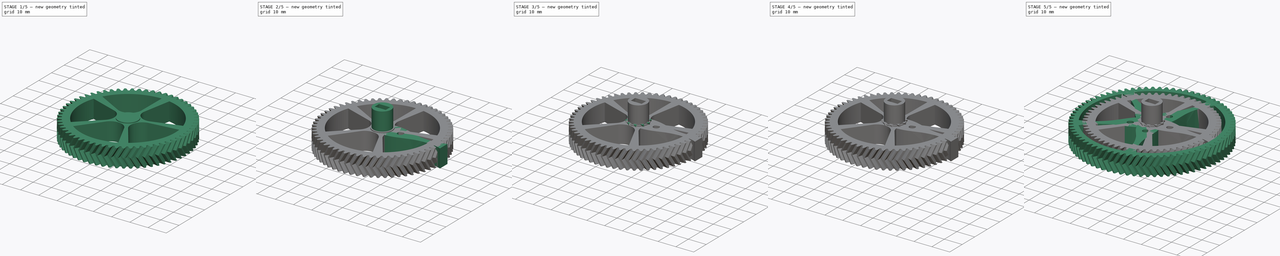
[diagram: build sequence overview — one tinted view per stage of 5, left to right]
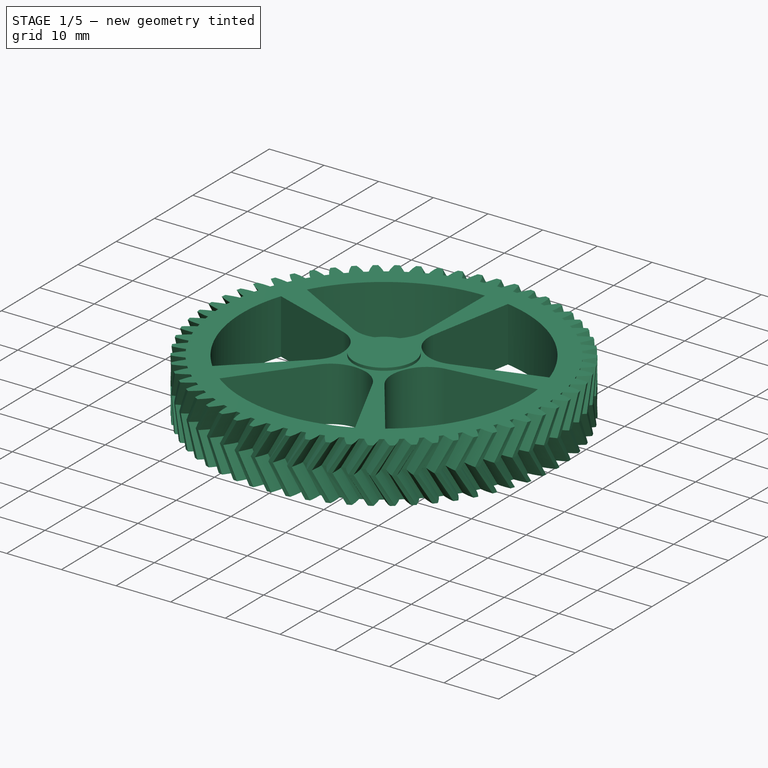
[diagram: stage 1 of 5 — iso view after this stage's code; geometry added in this stage tinted green]
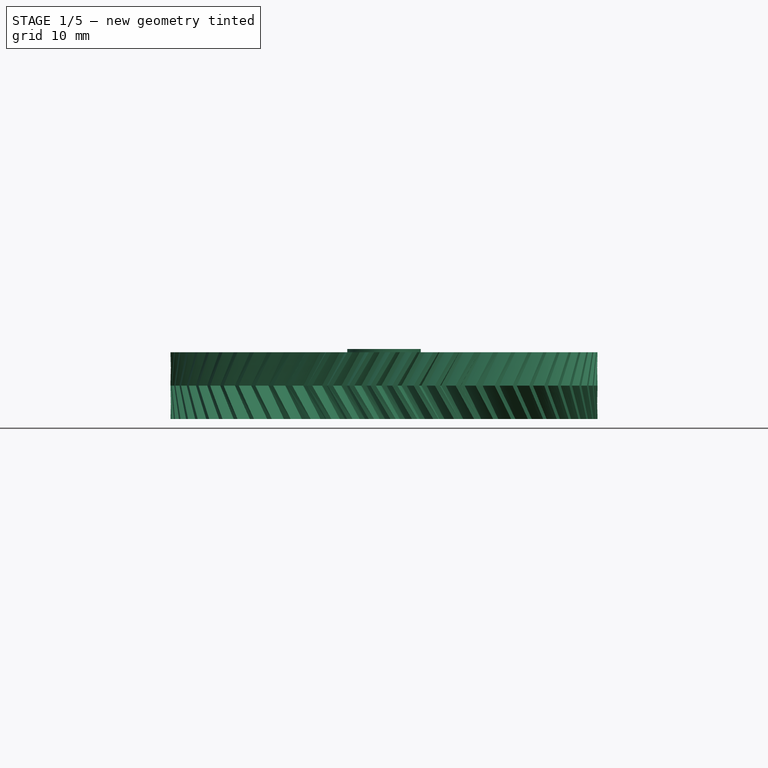
[diagram: stage 1 of 5 — front view after this stage's code; geometry added in this stage tinted green]
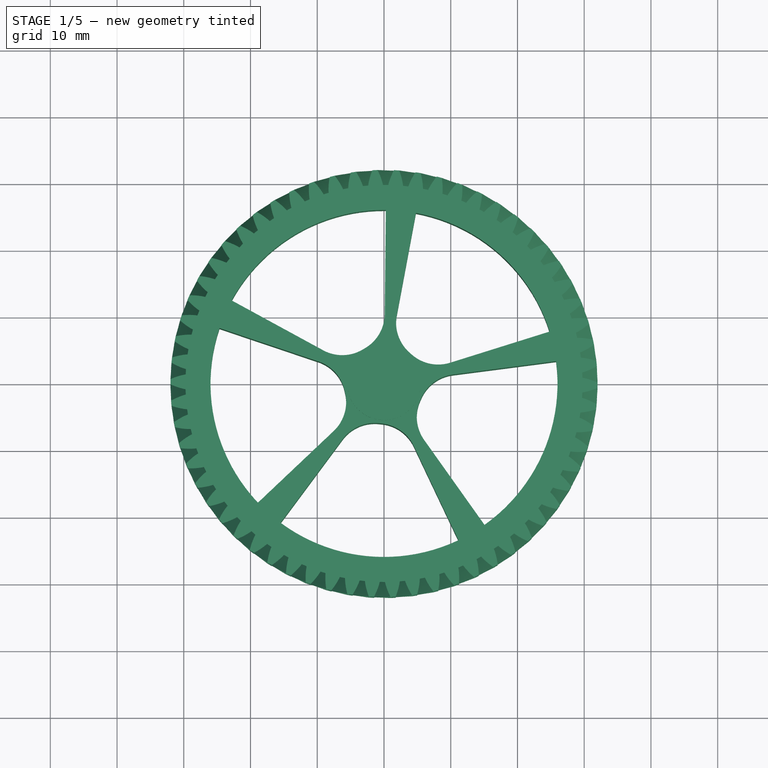
[diagram: stage 1 of 5 — top view after this stage's code; geometry added in this stage tinted green]
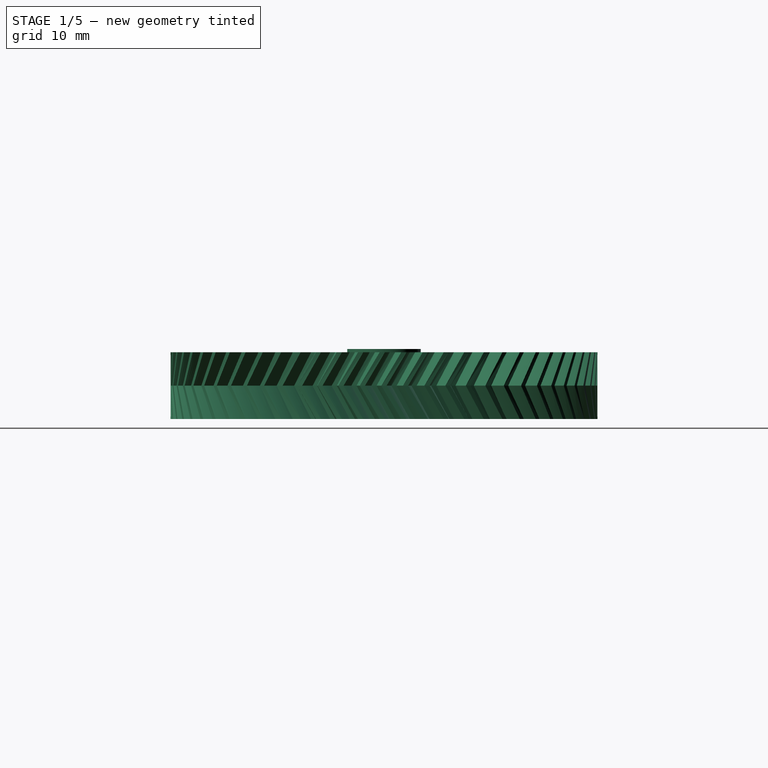
[diagram: stage 1 of 5 — right view after this stage's code; geometry added in this stage tinted green]
FCSTD DOCUMENT  (FreeCAD 1.0R39285 (Git))
Label: tripod_rotary_gears
License: All rights reserved
LicenseURL: http://en.wikipedia.org/wiki/All_rights_reserved
objects: Sketcher::SketchObject×12, PartDesign::Pocket×7, PartDesign::Pad×5, PartDesign::Body×5, PartDesign::FeaturePython×4, PartDesign::Fillet×1, Part::FeaturePython×1, PartDesign::Boolean×1, PartDesign::Chamfer×1, App::DocumentObjectGroup×1, App::Part×1
note: 81 computed .brp shape members not serialized (recipe doc carries the construction recipe); baked Part::Feature solids carry a one-line shape summary decoded from their .brp

FEATURE [PartDesign::FeaturePython] InvoluteGear006  # WARN: FeaturePython — macro-defined, semantics opaque (R4)
  AttacherType = Attacher::AttachEngine3D
  Suppressed = false
  addendum_diameter = 64
  angular_backlash = 0
  axle_hole = false
  axle_holesize = 10
  backlash = 0
  clearance = 0.25
  double_helix = true
  head = 0
  head_fillet = 0
  height = 10
  helix_angle = 30
  module = 1
  num_teeth = 62
  numpoints = 20
  offset_hole = false
  offset_holeoffset = 10
  offset_holesize = 10
  pitch_diameter = 62
  pressure_angle = 20
  properties_from_tool = false
  reversed_backlash = false
  root_diameter = 59.5
  root_fillet = 0
  shift = 0
  simple = false
  transverse_pitch = 3.14159
  traverse_module = 1
  undercut = false
  version = 1.3.0
  expr: angular_backlash = backlash / pitch_diameter * 360 ° / pi
FEATURE [Sketcher::SketchObject] Sketch064
  ArcFitTolerance = 1e-06
  FullyConstrained = false
  MakeInternals = false
  MapMode = 5
  Placement = pos=(1.57372e-09,1.57122e-10,0.000125759) rot=(1,0,-6e-06;3.14159rad)
  sketch-geometry (30):
    g0: ArcOfCircle CenterX=0 CenterY=0 CenterZ=0 NormalX=0 NormalY=0 NormalZ=1 AngleXU=0 Radius=6 StartAngle=2.38411 EndAngle=3.46621
    g1: ArcOfCircle CenterX=0 CenterY=0 CenterZ=0 NormalX=0 NormalY=0 NormalZ=1 AngleXU=0 Radius=26 StartAngle=2.38411 EndAngle=3.46621
    g2: ArcOfCircle CenterX=0 CenterY=0 CenterZ=0 NormalX=0 NormalY=0 NormalZ=1 AngleXU=0 Radius=26 StartAngle=1.12747 EndAngle=2.20958
    g3: ArcOfCircle CenterX=0 CenterY=0 CenterZ=0 NormalX=0 NormalY=0 NormalZ=1 AngleXU=0 Radius=6 StartAngle=1.12747 EndAngle=2.20958
    g4: ArcOfCircle CenterX=0 CenterY=0 CenterZ=0 NormalX=0 NormalY=0 NormalZ=1 AngleXU=0 Radius=26 StartAngle=6.15402 EndAngle=7.23613
    g5: ArcOfCircle CenterX=0 CenterY=0 CenterZ=0 NormalX=0 NormalY=0 NormalZ=1 AngleXU=0 Radius=6 StartAngle=6.15402 EndAngle=7.23613
    g6: ArcOfCircle CenterX=0 CenterY=0 CenterZ=0 NormalX=0 NormalY=0 NormalZ=1 AngleXU=0 Radius=6 StartAngle=4.89738 EndAngle=5.97949
    g7: ArcOfCircle CenterX=0 CenterY=0 CenterZ=0 NormalX=0 NormalY=0 NormalZ=1 AngleXU=0 Radius=6 StartAngle=3.64075 EndAngle=4.72285
    g8: ArcOfCircle CenterX=0 CenterY=0 CenterZ=0 NormalX=0 NormalY=0 NormalZ=1 AngleXU=0 Radius=26 StartAngle=3.64075 EndAngle=4.72285
    g9: ArcOfCircle CenterX=0 CenterY=0 CenterZ=0 NormalX=0 NormalY=0 NormalZ=1 AngleXU=0 Radius=26 StartAngle=4.89738 EndAngle=5.97949
    g10: LineSegment [constr] StartX=0 StartY=0 StartZ=0 EndX=-18.8908 EndY=17.8645 EndZ=0
    g11: LineSegment [constr] StartX=0 StartY=0 StartZ=0 EndX=-24.6421 EndY=-8.29271 EndZ=0
    g12: LineSegment [constr] StartX=0 StartY=0 StartZ=0 EndX=-22.8277 EndY=-12.4458 EndZ=0
    g13: LineSegment [constr] StartX=0 StartY=0 StartZ=0 EndX=0.272021 EndY=-25.9986 EndZ=0
    g14: LineSegment [constr] StartX=4.78249 StartY=-25.5564 StartZ=0 EndX=0 EndY=0 EndZ=0
    g15: LineSegment [constr] StartX=24.8102 StartY=-7.77529 StartZ=0 EndX=0 EndY=-9e-16 EndZ=0
    g16: LineSegment [constr] StartX=25.7834 StartY=-3.34893 StartZ=0 EndX=0 EndY=4e-16 EndZ=0
    g17: LineSegment [constr] StartX=15.0615 StartY=21.1932 StartZ=0 EndX=0 EndY=0 EndZ=0
    g18: LineSegment [constr] StartX=0 StartY=0 StartZ=0 EndX=11.1525 EndY=23.4866 EndZ=0
    g19: LineSegment [constr] StartX=-15.5016 StartY=20.8734 StartZ=0 EndX=0 EndY=0 EndZ=0
    g20: LineSegment StartX=-4.35941 StartY=4.12257 StartZ=0 EndX=-18.8908 EndY=17.8645 EndZ=0
    g21: LineSegment StartX=-5.68663 StartY=-1.9137 StartZ=0 EndX=-24.6421 EndY=-8.29271 EndZ=0
    g22: LineSegment StartX=-5.26792 StartY=-2.8721 StartZ=0 EndX=-22.8277 EndY=-12.4458 EndZ=0
    g23: LineSegment StartX=0.062774 StartY=-5.99967 StartZ=0 EndX=0.272021 EndY=-25.9986 EndZ=0
    g24: LineSegment StartX=4.78249 StartY=-25.5564 StartZ=0 EndX=1.10365 EndY=-5.89762 EndZ=0
    g25: LineSegment StartX=24.8102 StartY=-7.77529 StartZ=0 EndX=5.72543 EndY=-1.7943 EndZ=0
    g26: LineSegment StartX=25.7834 StartY=-3.34893 StartZ=0 EndX=5.95002 EndY=-0.77283 EndZ=0
    g27: LineSegment StartX=15.0615 StartY=21.1932 StartZ=0 EndX=3.47573 EndY=4.89073 EndZ=0
    g28: LineSegment StartX=11.1525 StartY=23.4866 StartZ=0 EndX=2.57366 EndY=5.41999 EndZ=0
    g29: LineSegment StartX=-3.5773 StartY=4.81694 StartZ=0 EndX=-15.5016 EndY=20.8734 EndZ=0
  constraints (80):
    c: Coincident(g0,g-1)
    c: Coincident(g1,g0)
    c: Coincident(g2,g0)
    c: Coincident(g3,g0)
    c: Coincident(g4,g0)
    c: Coincident(g5,g0)
    c: Coincident(g6,g0)
    c: Coincident(g7,g0)
    c: Coincident(g8,g0)
    c: Coincident(g9,g0)
    c: Coincident(g10,g0)
    c: Coincident(g10,g1)
    c: Coincident(g11,g0)
    c: Coincident(g11,g1)
    c: Coincident(g12,g0)
    c: Coincident(g12,g8)
    c: Coincident(g13,g0)
    c: Coincident(g13,g8)
    c: Coincident(g14,g9)
    c: Coincident(g14,g0)
    c: Coincident(g15,g9)
    c: Coincident(g15,g0)
    c: Coincident(g16,g4)
    c: Coincident(g16,g0)
    c: Coincident(g17,g4)
    c: Coincident(g17,g0)
    c: Coincident(g18,g0)
    c: Coincident(g18,g2)
    c: Coincident(g19,g2)
    c: Coincident(g19,g0)
    c: PointOnObject(g3,g19)
    c: PointOnObject(g3,g18)
    c: PointOnObject(g5,g17)
    c: PointOnObject(g5,g16)
    c: PointOnObject(g6,g15)
    c: PointOnObject(g6,g14)
    c: PointOnObject(g7,g13)
    c: PointOnObject(g7,g12)
    c: PointOnObject(g0,g11)
    c: PointOnObject(g0,g10)
    c: Equal(g1,g2)
    c: Equal(g2,g4)
    c: Equal(g4,g9)
    c: Equal(g8,g9)
    c: Equal(g0,g7)
    c: Equal(g0,g3)
    c: Equal(g3,g5)
    c: Equal(g6,g5)
    c: Radius(g2) = 26
    c: Radius(g3) = 6
    c: Coincident(g20,g0)
    c: Coincident(g20,g1)
    c: Coincident(g21,g0)
    c: Coincident(g21,g1)
    c: Coincident(g22,g7)
    c: Coincident(g22,g8)
    c: Coincident(g23,g7)
    c: Coincident(g23,g8)
    c: Coincident(g24,g9)
    c: Coincident(g24,g6)
    c: Coincident(g25,g9)
    c: Coincident(g25,g6)
    c: Coincident(g26,g4)
    c: Coincident(g26,g5)
    c: Coincident(g27,g4)
    c: Coincident(g27,g5)
    c: Coincident(g28,g2)
    c: Coincident(g28,g3)
    c: Angle(g17,g18) = 0.174533
    c: Angle(g19,g10) = 0.174533
    c: Coincident(g29,g3)
    c: Coincident(g29,g2)
    c: Angle(g11,g12) = 0.174533
    c: Angle(g13,g14) = 0.174533
    c: Angle(g15,g16) = 0.174533
    c: Angle(g18,g19) = 1.0821
    c: Angle(g10,g11) = 1.0821
    c: Angle(g12,g13) = 1.0821
    c: Angle(g14,g15) = 1.0821
    c: Angle(g16,g17) = 1.0821
FEATURE [PartDesign::Pocket] Pocket045
  BaseFeature = -> InvoluteGear006
  Direction = (1.25137e-05,1.24939e-06,1)
  Length = 5
  Length2 = 5
  Profile = -> Sketch064
  ReferenceAxis = -> Sketch064 [N_Axis]
  Suppressed = false
  Type = 1
FEATURE [PartDesign::Body] Body  label="small_stepper"
  AllowCompound = false
  Group = -> [InvoluteGear,Sketch067,Pocket046]
  Origin = -> Origin
  Placement = pos=(0,-78,-20) rot=(0,0,1;0rad)
  Tip = -> Pocket046
FEATURE [PartDesign::Fillet] Fillet
  Base = -> Pocket045 [Edge1053,Edge1054,Edge1046,Edge1045,Edge1038,Edge1037,Edge1042,Edge1043,Edge1051,Edge1050]
  BaseFeature = -> Pocket045
  Radius = 6
  SupportTransform = false
  Suppressed = false
  UseAllEdges = false
FEATURE [Sketcher::SketchObject] Sketch068
  ArcFitTolerance = 1e-06
  AttachmentSupport = -> [Fillet]
  FullyConstrained = true
  MakeInternals = false
  MapMode = 5
  Placement = pos=(-9.63694e-05,-8.99752e-06,9.9999) rot=(0.092961,-0.99567,0;1e-05rad)
  sketch-geometry (1):
    g0: Circle CenterX=0 CenterY=0 CenterZ=0 NormalX=0 NormalY=0 NormalZ=1 AngleXU=0 Radius=5.5
  constraints (2):
    c: Coincident(g0,g-1)
    c: Diameter(g0) = 11
FEATURE [PartDesign::Pad] Pad
  BaseFeature = -> Fillet
  Direction = (-9.63703e-06,-8.99761e-07,1)
  Length = 0.5
  Length2 = 10
  Profile = -> Sketch068
  ReferenceAxis = -> Sketch068 [N_Axis]
  Suppressed = false
  Type = 0
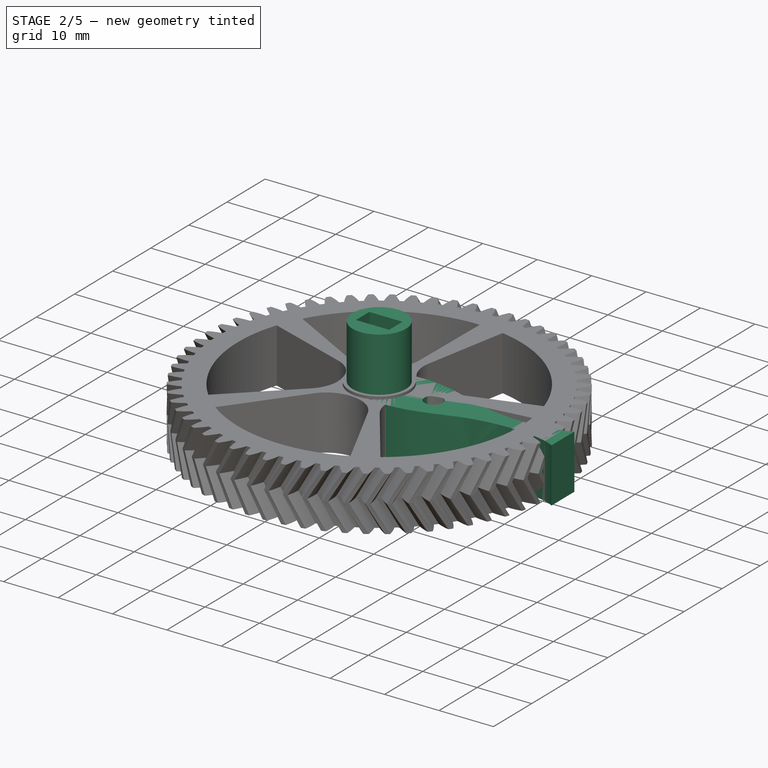
[diagram: stage 2 of 5 — iso view after this stage's code; geometry added in this stage tinted green]
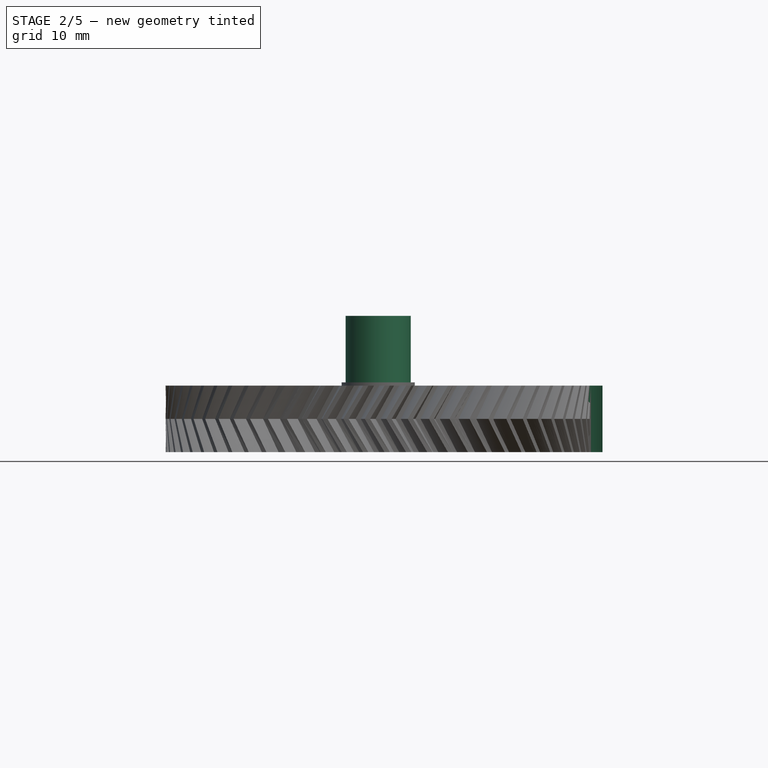
[diagram: stage 2 of 5 — front view after this stage's code; geometry added in this stage tinted green]
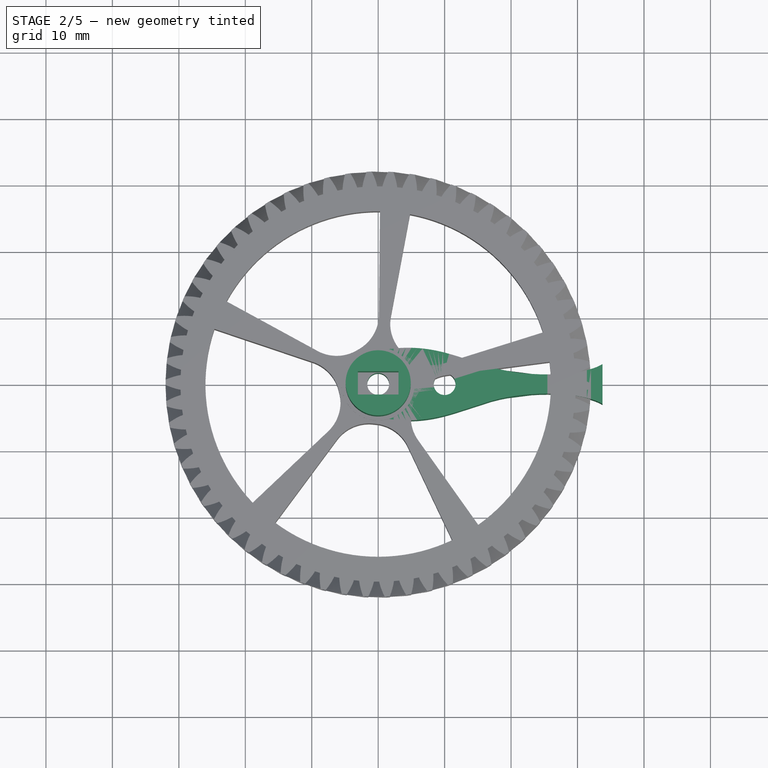
[diagram: stage 2 of 5 — top view after this stage's code; geometry added in this stage tinted green]
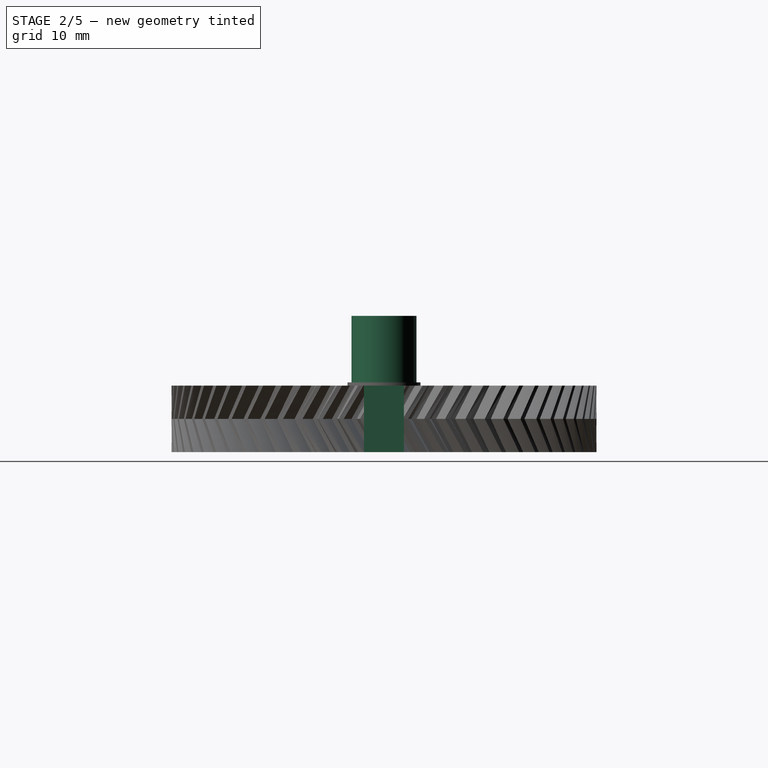
[diagram: stage 2 of 5 — right view after this stage's code; geometry added in this stage tinted green]
FEATURE [Sketcher::SketchObject] Sketch060
  ArcFitTolerance = 1e-06
  AttachmentSupport = -> [XY_Plane037]
  FullyConstrained = false
  MakeInternals = false
  MapMode = 5
  sketch-geometry (24):
    g0: LineSegment StartX=33.75 StartY=-3 StartZ=0 EndX=33.75 EndY=3 EndZ=0
    g1: GeomPoint X=0 Y=0 Z=0
    g2: ArcOfCircle CenterX=0 CenterY=0 CenterZ=0 NormalX=0 NormalY=0 NormalZ=1 AngleXU=0 Radius=4 StartAngle=4.71239 EndAngle=7.85398
    g3: LineSegment StartX=1.2e-15 StartY=4 StartZ=0 EndX=1.2e-15 EndY=5 EndZ=0
    g4: LineSegment StartX=-7e-16 StartY=-4 StartZ=0 EndX=-7e-16 EndY=-5 EndZ=0
    g5-g9: Circle [constr] x5 (B-spline internal-alignment scaffolding for g10; pole/knot coordinates omitted)
    g10: BSplineCurve PolesCount=5 KnotsCount=3 Degree=3 IsPeriodic=0
    g11: GeomPoint [constr] X=0 Y=5 Z=0
    g12: GeomPoint [constr] X=18.2387 Y=2.22783 Z=0
    g13: GeomPoint [constr] X=33.75 Y=3 Z=0
    g14-g18: Circle [constr] x5 (B-spline internal-alignment scaffolding for g19; pole/knot coordinates omitted)
    g19: BSplineCurve PolesCount=5 KnotsCount=3 Degree=3 IsPeriodic=0
    g20: GeomPoint [constr] X=0 Y=-5 Z=0
    g21: GeomPoint [constr] X=18.2387 Y=-2.22783 Z=0
    g22: GeomPoint [constr] X=33.75 Y=-3 Z=0
    g23: Circle CenterX=10 CenterY=0 CenterZ=0 NormalX=0 NormalY=0 NormalZ=1 AngleXU=0 Radius=1.65
  constraints (37):
    c: Vertical(g0)
    c: Coincident(g1,g-1)
    c: Coincident(g2,g1)
    c: Radius(g2) = 4
    c: Coincident(g3,g2)
    c: PointOnObject(g3,g-2)
    c: Vertical(g3)
    c: Coincident(g4,g2)
    c: PointOnObject(g4,g-2)
    c: Vertical(g4)
    c: Equal(g4,g3)
    c: Distance(g3,g2) = 1
    c: Weight(g5) = 1
    c: Equal(g5, g6-g9) x4
    c: InternalAlignment(g5-g9 -> g10) x5
    c: InternalAlignment(g11,g10)
    c: InternalAlignment(g12,g10)
    c: InternalAlignment(g13,g10)
    c: Coincident(g5,g3)
    c: Coincident(g9,g0)
    c: Weight(g14) = 1
    c: Equal(g14, g15-g18) x4
    c: InternalAlignment(g14-g18 -> g19) x5
    c: InternalAlignment(g20,g19)
    c: InternalAlignment(g21,g19)
    c: InternalAlignment(g22,g19)
    c: Coincident(g14,g4)
    c: Coincident(g18,g0)
    c: DistanceY(g0,g0) = 6
    c: Symmetric(g8,g17,g-1)
    c: Symmetric(g7,g16,g-1)
    c: Symmetric(g6,g15,g-1)
    c: DistanceX(g2,g10) = 33.75
    c: DistanceX(g7,g10) = 16.875
    c: PointOnObject(g23,g-1)
    c: DistanceX(g1,g23) = 10
    c: Diameter(g23) = 3.3
FEATURE [PartDesign::Pad] Pad017
  Direction = (0,0,1)
  Length = 10
  Length2 = 10
  Profile = -> Sketch060
  ReferenceAxis = -> Sketch060 [N_Axis]
  Suppressed = false
  Type = 0
FEATURE [Sketcher::SketchObject] Sketch069
  ArcFitTolerance = 1e-06
  AttachmentSupport = -> [Pad]
  FullyConstrained = true
  MakeInternals = false
  MapMode = 5
  Placement = pos=(-0.000101188,-9.4474e-06,10.4999) rot=(0.092961,-0.99567,0;1e-05rad)
  sketch-geometry (5):
    g0: Circle CenterX=0 CenterY=0 CenterZ=0 NormalX=0 NormalY=0 NormalZ=1 AngleXU=0 Radius=4.9
    g1: LineSegment StartX=-3.05 StartY=1.75 StartZ=0 EndX=-3.05 EndY=-1.75 EndZ=0
    g2: LineSegment StartX=-3.05 StartY=-1.75 StartZ=0 EndX=3.05 EndY=-1.75 EndZ=0
    g3: LineSegment StartX=3.05 StartY=-1.75 StartZ=0 EndX=3.05 EndY=1.75 EndZ=0
    g4: LineSegment StartX=3.05 StartY=1.75 StartZ=0 EndX=-3.05 EndY=1.75 EndZ=0
  constraints (13):
    c: Coincident(g0,g-1)
    c: Diameter(g0) = 9.8
    c: Coincident(g1,g2)
    c: Coincident(g2,g3)
    c: Coincident(g3,g4)
    c: Coincident(g4,g1)
    c: Vertical(g1)
    c: Vertical(g3)
    c: Horizontal(g2)
    c: Horizontal(g4)
    c: Symmetric(g3,g1,g0)
    c: DistanceY(g3,g3) = 3.5
    c: DistanceX(g4,g4) = 6.1
FEATURE [PartDesign::Pad] Pad019
  BaseFeature = -> Pad
  Direction = (-9.63703e-06,-8.99761e-07,1)
  Length = 10
  Length2 = 10
  Profile = -> Sketch069
  ReferenceAxis = -> Sketch069 [N_Axis]
  Suppressed = false
  Type = 0
FEATURE [PartDesign::Body] Body017  label="main"
  AllowCompound = false
  Group = -> [InvoluteGear003,Sketch059,Pocket041,Boolean]
  Origin = -> Origin032
  Tip = -> Boolean
FEATURE [Sketcher::SketchObject] Sketch074
  ArcFitTolerance = 1e-06
  AttachmentSupport = -> [Pad019]
  FullyConstrained = true
  MakeInternals = false
  MapMode = 5
  Placement = pos=(9.32763e-10,8.70874e-11,9.67895e-05) rot=(1,0,-5e-06;3.14159rad)
  sketch-geometry (1):
    g0: Circle CenterX=0 CenterY=0 CenterZ=0 NormalX=0 NormalY=0 NormalZ=1 AngleXU=0 Radius=1.65
  constraints (2):
    c: Coincident(g0,g-1)
    c: Diameter(g0) = 3.3
FEATURE [PartDesign::Pocket] Pocket049
  BaseFeature = -> Pad019
  Direction = (9.63703e-06,8.99761e-07,1)
  Length = 5
  Length2 = 5
  Profile = -> Sketch074
  ReferenceAxis = -> Sketch074 [N_Axis]
  Suppressed = false
  Type = 1
FEATURE [PartDesign::Chamfer] Chamfer
  Angle = 45
  Base = -> Pocket049 [Edge1334]
  BaseFeature = -> Pocket049
  ChamferType = 0
  FlipDirection = false
  Size = 2
  Size2 = 1
  SupportTransform = false
  Suppressed = false
  UseAllEdges = false
FEATURE [PartDesign::Body] Body019  label="large_1"
  AllowCompound = false
  Group = -> [InvoluteGear006,Sketch064,Pocket045,Fillet,Sketch068,Pad,Sketch069,Pad019,Sketch074,Pocket049,Chamfer]
  Origin = -> Origin034
  Placement = pos=(0,-42.25,-21) rot=(0,0,1;0rad)
  Tip = -> Chamfer
FEATURE [App::DocumentObjectGroup] Group  label="double"
  Group = -> [Body018,Body019]
FEATURE [App::Part] Part013  label="rotary_large_gear"
  Group = -> [Body017,Body021,Group,Body018,Body019,Body]
  Origin = -> Origin036
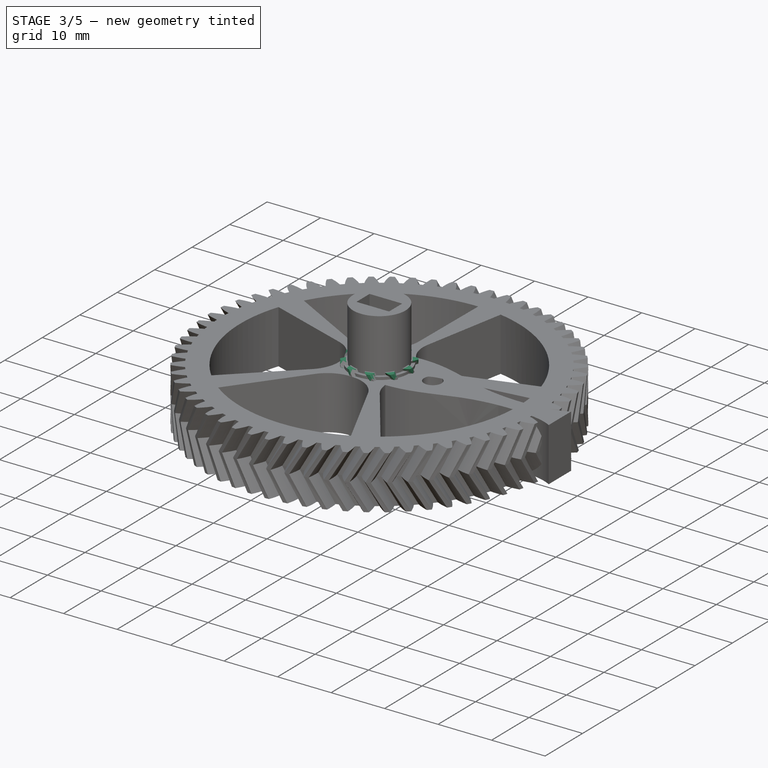
[diagram: stage 3 of 5 — iso view after this stage's code; geometry added in this stage tinted green]
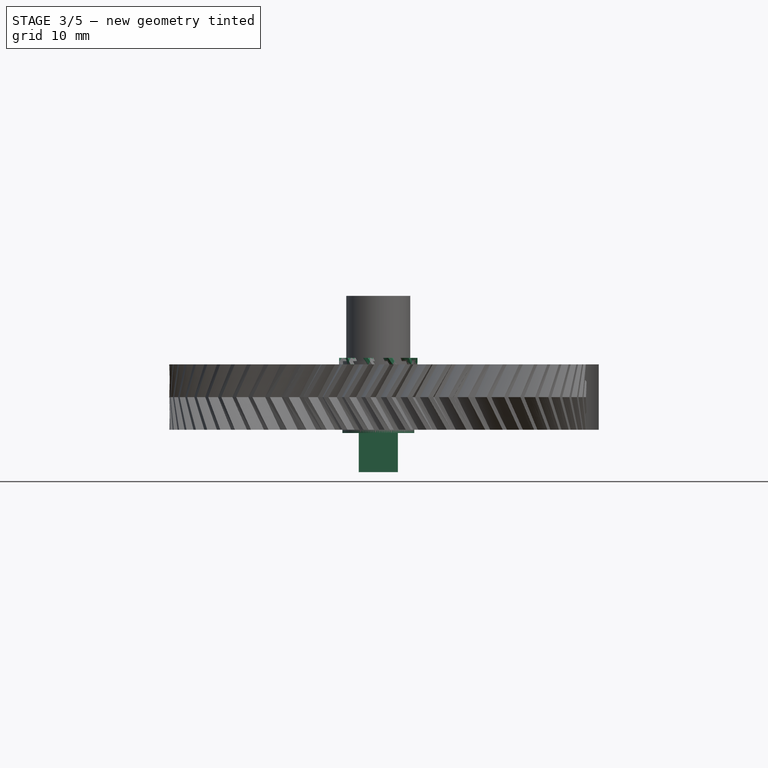
[diagram: stage 3 of 5 — front view after this stage's code; geometry added in this stage tinted green]
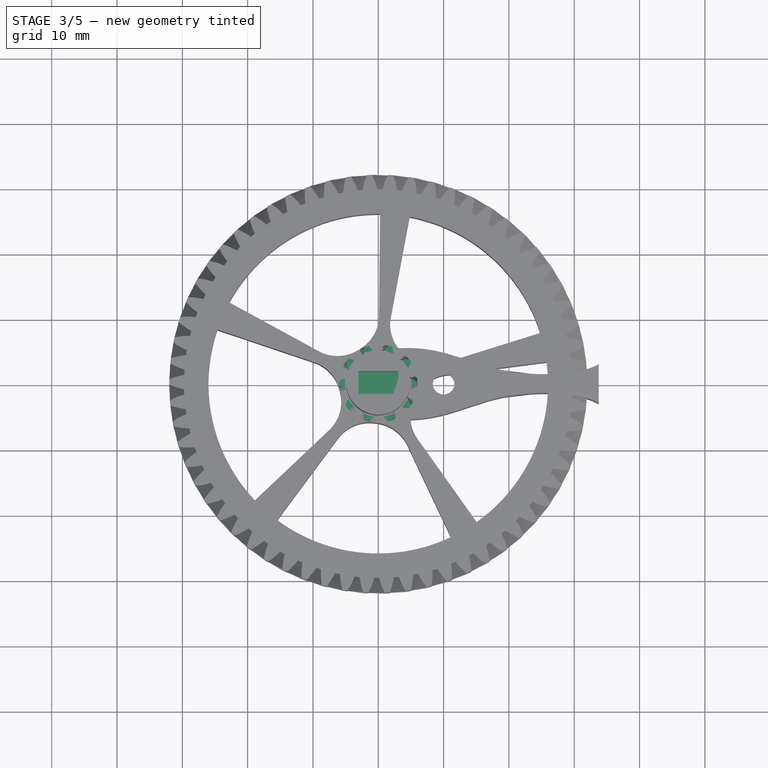
[diagram: stage 3 of 5 — top view after this stage's code; geometry added in this stage tinted green]
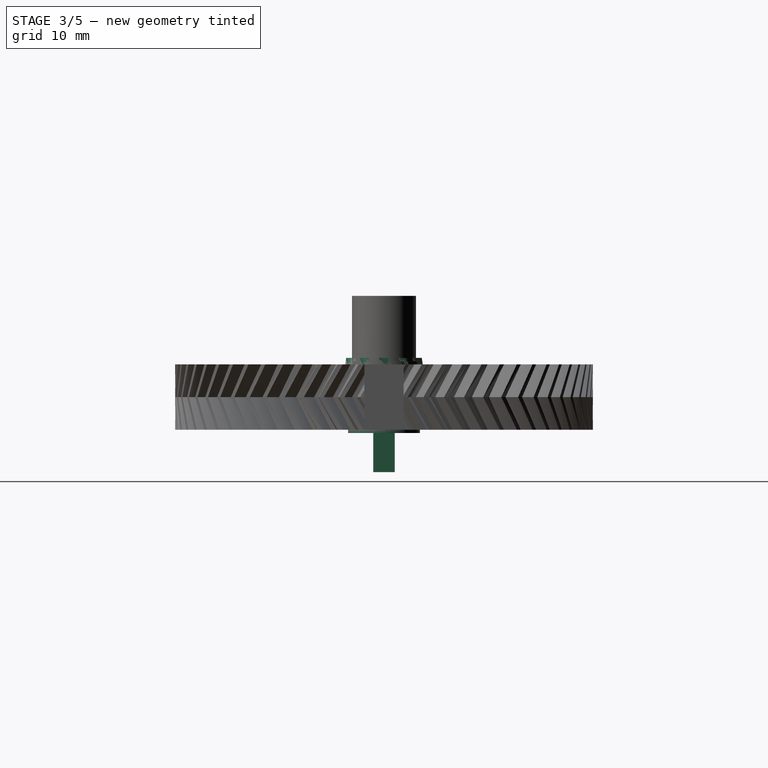
[diagram: stage 3 of 5 — right view after this stage's code; geometry added in this stage tinted green]
FEATURE [PartDesign::FeaturePython] InvoluteGear005  # WARN: FeaturePython — macro-defined, semantics opaque (R4)
  AttacherType = Attacher::AttachEngine3D
  Suppressed = false
  addendum_diameter = 12
  angular_backlash = 0
  axle_hole = false
  axle_holesize = 10
  backlash = 0
  clearance = 0.25
  double_helix = true
  head = 0
  head_fillet = 0
  height = 11
  helix_angle = -30
  module = 1
  num_teeth = 10
  numpoints = 20
  offset_hole = false
  offset_holeoffset = 10
  offset_holesize = 10
  pitch_diameter = 10
  pressure_angle = 20
  properties_from_tool = false
  reversed_backlash = false
  root_diameter = 7.5
  root_fillet = 0
  shift = 0
  simple = false
  transverse_pitch = 3.14159
  traverse_module = 1
  undercut = false
  version = 1.3.0
  expr: angular_backlash = backlash / pitch_diameter * 360 ° / pi
FEATURE [Sketcher::SketchObject] Sketch
  ArcFitTolerance = 1e-06
  FullyConstrained = true
  MakeInternals = false
  MapMode = 5
  Placement = pos=(6.25505e-09,-4.60966e-09,-0.000278749) rot=(1,0,1.1e-05;3.14158rad)
  sketch-geometry (1):
    g0: Circle CenterX=0 CenterY=0 CenterZ=0 NormalX=0 NormalY=0 NormalZ=1 AngleXU=0 Radius=5.5
  constraints (2):
    c: Coincident(g0,g-1)
    c: Diameter(g0) = 11
FEATURE [PartDesign::Pad] Pad020
  BaseFeature = -> InvoluteGear005
  Direction = (2.24397e-05,-1.6537e-05,-1)
  Length = 0.5
  Length2 = 10
  Profile = -> Sketch
  ReferenceAxis = -> Sketch [N_Axis]
  Suppressed = false
  Type = 0
FEATURE [Sketcher::SketchObject] Sketch070
  ArcFitTolerance = 1e-06
  AttachmentSupport = -> [Pad020]
  FullyConstrained = true
  MakeInternals = false
  MapMode = 5
  Placement = pos=(1.12261e-05,-8.27309e-06,-0.500279) rot=(1,0,1.1e-05;3.14158rad)
  sketch-geometry (4):
    g0: LineSegment StartX=-3 StartY=1.65 StartZ=0 EndX=-3 EndY=-1.65 EndZ=0
    g1: LineSegment StartX=-3 StartY=-1.65 StartZ=0 EndX=3 EndY=-1.65 EndZ=0
    g2: LineSegment StartX=3 StartY=-1.65 StartZ=0 EndX=3 EndY=1.65 EndZ=0
    g3: LineSegment StartX=3 StartY=1.65 StartZ=0 EndX=-3 EndY=1.65 EndZ=0
  constraints (11):
    c: Coincident(g0,g1)
    c: Coincident(g1,g2)
    c: Coincident(g2,g3)
    c: Coincident(g3,g0)
    c: Vertical(g0)
    c: Vertical(g2)
    c: Horizontal(g1)
    c: Horizontal(g3)
    c: Symmetric(g2,g0,g-1)
    c: DistanceX(g3,g3) = 6
    c: DistanceY(g0,g0) = 3.3
FEATURE [PartDesign::Pad] Pad021
  BaseFeature = -> Pad020
  Direction = (2.24397e-05,-1.6537e-05,-1)
  Length = 6
  Length2 = 10
  Profile = -> Sketch070
  ReferenceAxis = -> Sketch070 [N_Axis]
  Suppressed = false
  Type = 0
FEATURE [PartDesign::Body] Body018  label="small_1"
  AllowCompound = false
  Group = -> [InvoluteGear005,Sketch,Pad020,Sketch070,Pad021,Sketch071,Pocket,Sketch072,Pocket047]
  Origin = -> Origin033
  Placement = pos=(0,-42.25,0) rot=(0,0,1;0rad)
  Tip = -> Pocket047
FEATURE [Sketcher::SketchObject] Sketch073
  ArcFitTolerance = 1e-06
  AttachmentSupport = -> [Pad017]
  ExternalGeometry = -> [Pad017]
  FullyConstrained = true
  MakeInternals = false
  MapMode = 5
  Placement = pos=(0,0,0) rot=(1,0,0;3.14159rad)
  sketch-geometry (7):
    g0: LineSegment StartX=12.8 StartY=1.61658 StartZ=0 EndX=10 EndY=3.23316 EndZ=0
    g1: LineSegment StartX=10 StartY=3.23316 StartZ=0 EndX=7.2 EndY=1.61658 EndZ=0
    g2: LineSegment StartX=7.2 StartY=1.61658 StartZ=0 EndX=7.2 EndY=-1.61658 EndZ=0
    g3: LineSegment StartX=7.2 StartY=-1.61658 StartZ=0 EndX=10 EndY=-3.23316 EndZ=0
    g4: LineSegment StartX=10 StartY=-3.23316 StartZ=0 EndX=12.8 EndY=-1.61658 EndZ=0
    g5: LineSegment StartX=12.8 StartY=-1.61658 StartZ=0 EndX=12.8 EndY=1.61658 EndZ=0
    g6: Circle [constr] CenterX=10 CenterY=0 CenterZ=0 NormalX=0 NormalY=0 NormalZ=1 AngleXU=0 Radius=3.23316
  constraints (16):
    c: Coincident(g0,g1)
    c: Coincident(g1,g2)
    c: Coincident(g2,g3)
    c: Coincident(g3,g4)
    c: Coincident(g4,g5)
    c: Coincident(g5,g0)
    c: Equal(g0, g1-g5) x5
    c: PointOnObject(g0,g6)
    c: PointOnObject(g1,g6)
    c: PointOnObject(g2,g6)
    c: PointOnObject(g3,g6)
    c: PointOnObject(g4,g6)
    c: PointOnObject(g5,g6)
    c: Coincident(g6,g-3)
    c: Vertical(g2)
    c: DistanceX(g1,g0) = 5.6
FEATURE [PartDesign::Pocket] Pocket048
  BaseFeature = -> Pad017
  Direction = (0,0,1)
  Length = 5.25
  Length2 = 5
  Profile = -> Sketch073
  ReferenceAxis = -> Sketch073 [N_Axis]
  Suppressed = false
  Type = 0
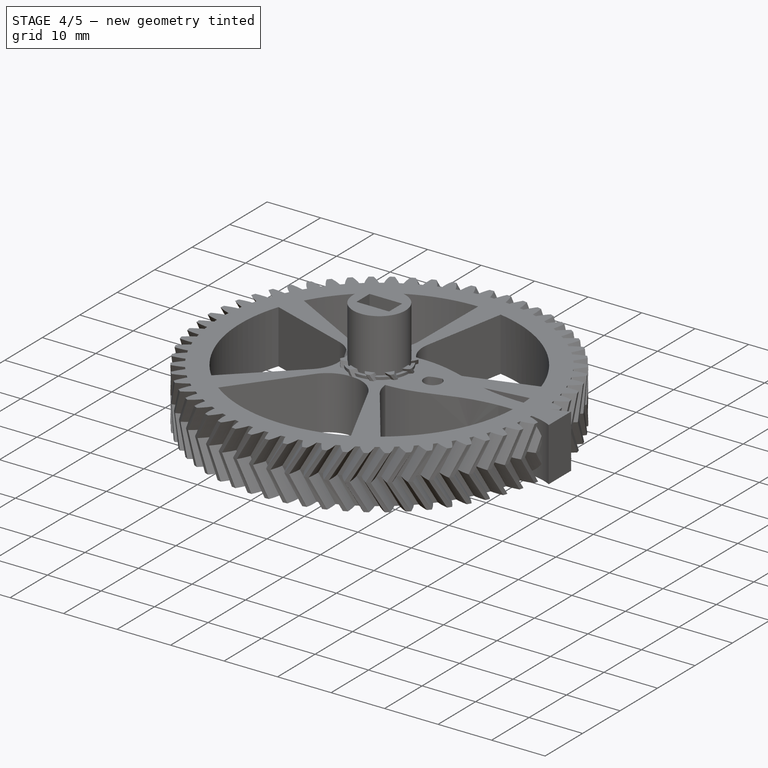
[diagram: stage 4 of 5 — iso view after this stage's code; geometry added in this stage tinted green]
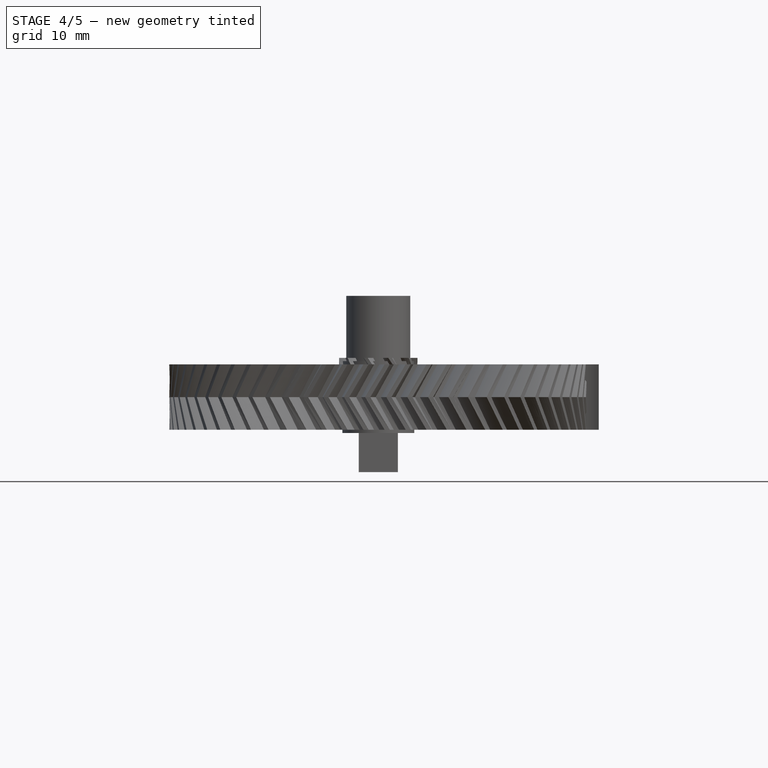
[diagram: stage 4 of 5 — front view after this stage's code; geometry added in this stage tinted green]
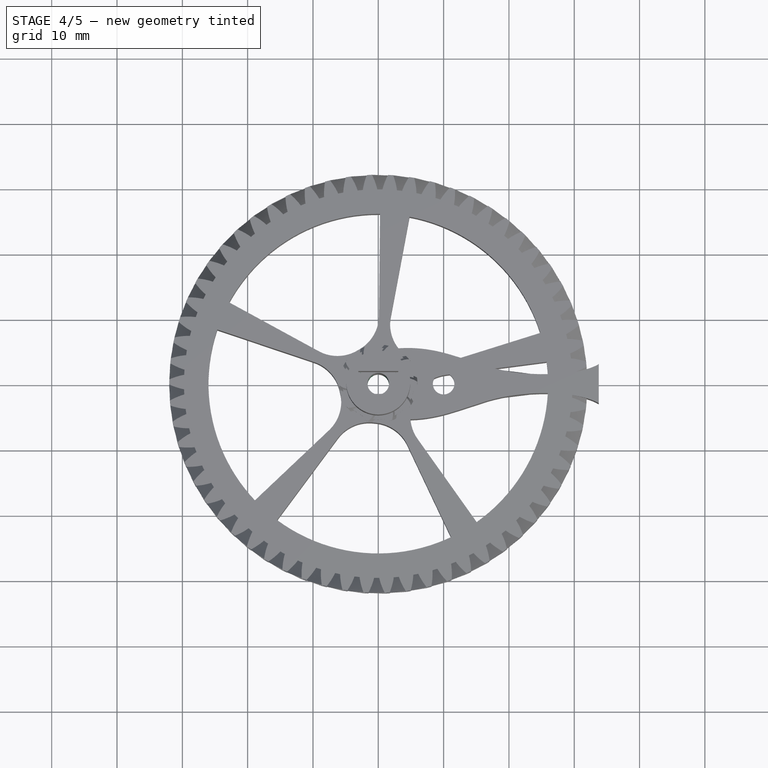
[diagram: stage 4 of 5 — top view after this stage's code; geometry added in this stage tinted green]
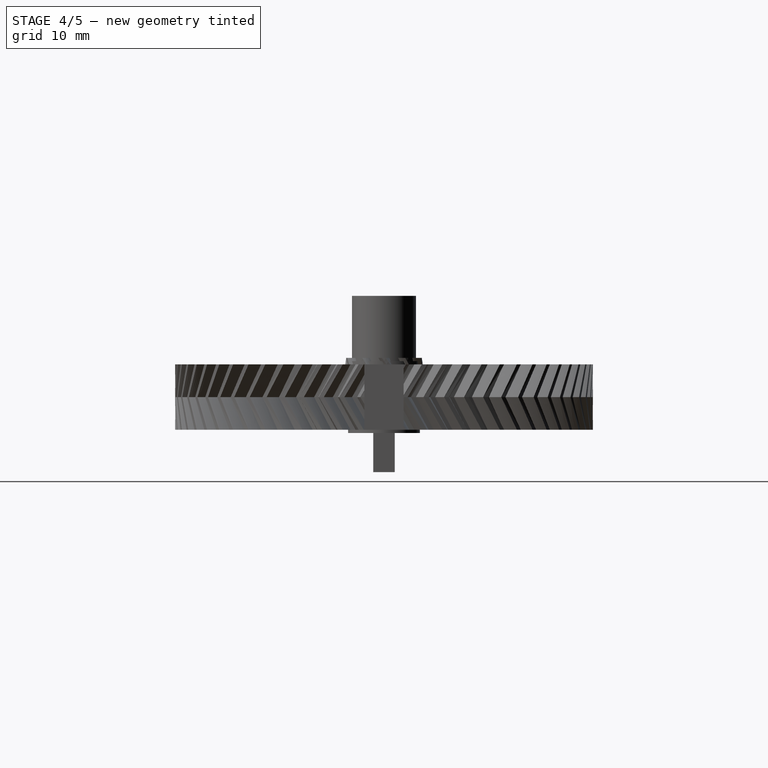
[diagram: stage 4 of 5 — right view after this stage's code; geometry added in this stage tinted green]
FEATURE [PartDesign::FeaturePython] InvoluteGear  # WARN: FeaturePython — macro-defined, semantics opaque (R4)
  AttacherType = Attacher::AttachEngine3D
  Suppressed = false
  addendum_diameter = 12
  angular_backlash = 0
  axle_hole = false
  axle_holesize = 10
  backlash = 0
  clearance = 0.25
  double_helix = true
  head = 0
  head_fillet = 0
  height = 10
  helix_angle = -30
  module = 1
  num_teeth = 10
  numpoints = 20
  offset_hole = false
  offset_holeoffset = 10
  offset_holesize = 10
  pitch_diameter = 10
  pressure_angle = 20
  properties_from_tool = false
  reversed_backlash = false
  root_diameter = 7.5
  root_fillet = 0
  shift = 0
  simple = false
  transverse_pitch = 3.14159
  traverse_module = 1
  undercut = false
  version = 1.3.0
  expr: angular_backlash = backlash / pitch_diameter * 360 ° / pi
FEATURE [Sketcher::SketchObject] Sketch067
  ArcFitTolerance = 1e-06
  AttachmentSupport = -> [InvoluteGear]
  FullyConstrained = true
  MakeInternals = false
  MapMode = 5
  Placement = pos=(0.000145476,-9.4763e-05,10.0002) rot=(0.545813,0.837909,4e-06;1.7e-05rad)
  sketch-geometry (4):
    g0: ArcOfCircle CenterX=0 CenterY=0 CenterZ=0 NormalX=0 NormalY=0 NormalZ=1 AngleXU=0 Radius=2.65 StartAngle=5.45627 EndAngle=10.2517
    g1: LineSegment StartX=-1.79444 StartY=-1.95 StartZ=0 EndX=1.79444 EndY=-1.95 EndZ=0
    g2: GeomPoint X=0 Y=2.65 Z=0
    g3: GeomPoint X=0 Y=-1.95 Z=0
  constraints (10):
    c: Coincident(g0,g-1)
    c: Coincident(g1,g0)
    c: Horizontal(g1)
    c: Coincident(g0,g1)
    c: PointOnObject(g2,g-2)
    c: PointOnObject(g3,g1)
    c: PointOnObject(g3,g-2)
    c: PointOnObject(g2,g0)
    c: DistanceY(g3,g2) = 4.6
    c: Radius(g0) = 2.65
FEATURE [PartDesign::Pocket] Pocket046
  BaseFeature = -> InvoluteGear
  Direction = (-1.45474e-05,9.47614e-06,-1)
  Length = 5
  Length2 = 5
  Profile = -> Sketch067
  ReferenceAxis = -> Sketch067 [N_Axis]
  Suppressed = false
  Type = 1
FEATURE [Sketcher::SketchObject] Sketch071
  ArcFitTolerance = 1e-06
  AttachmentSupport = -> [Pad021]
  FullyConstrained = true
  MakeInternals = false
  MapMode = 5
  Placement = pos=(0.000246843,-0.000181911,11.0003) rot=(0.593256,0.805014,7e-06;2.8e-05rad)
  sketch-geometry (1):
    g0: Circle CenterX=0 CenterY=0 CenterZ=0 NormalX=0 NormalY=0 NormalZ=1 AngleXU=0 Radius=1.65
  constraints (2):
    c: Coincident(g0,g-1)
    c: Diameter(g0) = 3.3
FEATURE [PartDesign::Pocket] Pocket
  BaseFeature = -> Pad021
  Direction = (-2.24397e-05,1.6537e-05,-1)
  Length = 5
  Length2 = 5
  Profile = -> Sketch071
  ReferenceAxis = -> Sketch071 [N_Axis]
  Suppressed = false
  Type = 1
FEATURE [Sketcher::SketchObject] Sketch072
  ArcFitTolerance = 1e-06
  AttachmentSupport = -> [Pocket]
  FullyConstrained = true
  MakeInternals = false
  MapMode = 5
  Placement = pos=(0.000246843,-0.000181911,11.0003) rot=(0.593256,0.805014,7e-06;2.8e-05rad)
  sketch-geometry (7):
    g0: LineSegment StartX=0 StartY=3.23316 StartZ=0 EndX=-2.8 EndY=1.61658 EndZ=0
    g1: LineSegment StartX=-2.8 StartY=1.61658 StartZ=0 EndX=-2.8 EndY=-1.61658 EndZ=0
    g2: LineSegment StartX=-2.8 StartY=-1.61658 StartZ=0 EndX=4e-16 EndY=-3.23316 EndZ=0
    g3: LineSegment StartX=4e-16 StartY=-3.23316 StartZ=0 EndX=2.8 EndY=-1.61658 EndZ=0
    g4: LineSegment StartX=2.8 StartY=-1.61658 StartZ=0 EndX=2.8 EndY=1.61658 EndZ=0
    g5: LineSegment StartX=2.8 StartY=1.61658 StartZ=0 EndX=0 EndY=3.23316 EndZ=0
    g6: Circle [constr] CenterX=0 CenterY=0 CenterZ=0 NormalX=0 NormalY=0 NormalZ=1 AngleXU=0 Radius=3.23316
  constraints (16):
    c: Coincident(g0,g1)
    c: Coincident(g1,g2)
    c: Coincident(g2,g3)
    c: Coincident(g3,g4)
    c: Coincident(g4,g5)
    c: Coincident(g5,g0)
    c: Equal(g0, g1-g5) x5
    c: PointOnObject(g0,g6)
    c: PointOnObject(g1,g6)
    c: PointOnObject(g2,g6)
    c: PointOnObject(g3,g6)
    c: PointOnObject(g4,g6)
    c: PointOnObject(g5,g6)
    c: Coincident(g6,g-1)
    c: PointOnObject(g5,g-2)
    c: DistanceX(g0,g4) = 5.6
FEATURE [PartDesign::Pocket] Pocket047
  BaseFeature = -> Pocket
  Direction = (-2.24397e-05,1.6537e-05,-1)
  Length = 5
  Length2 = 5
  Profile = -> Sketch072
  ReferenceAxis = -> Sketch072 [N_Axis]
  Suppressed = false
  Type = 0
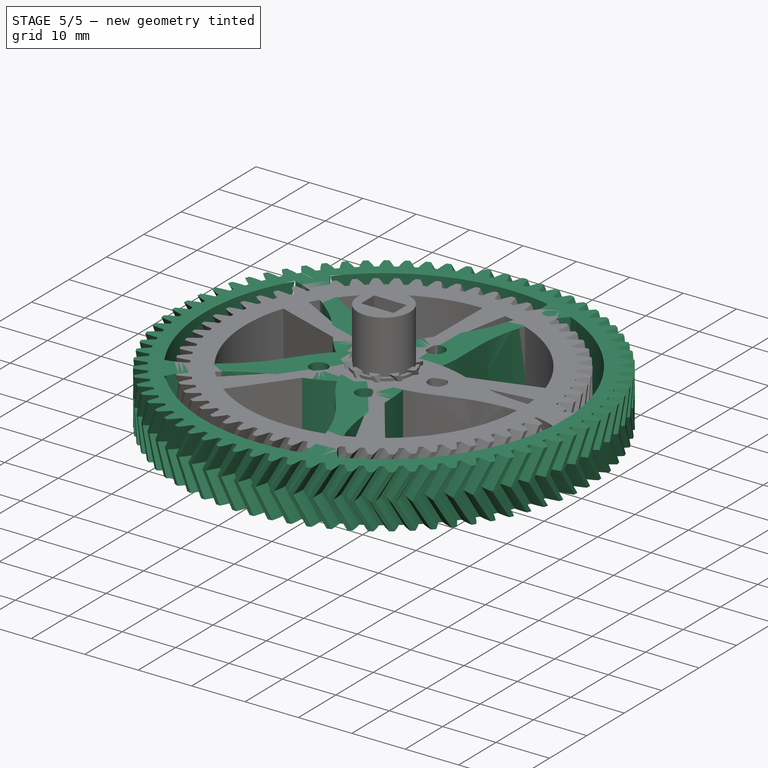
[diagram: stage 5 of 5 — iso view after this stage's code; geometry added in this stage tinted green]
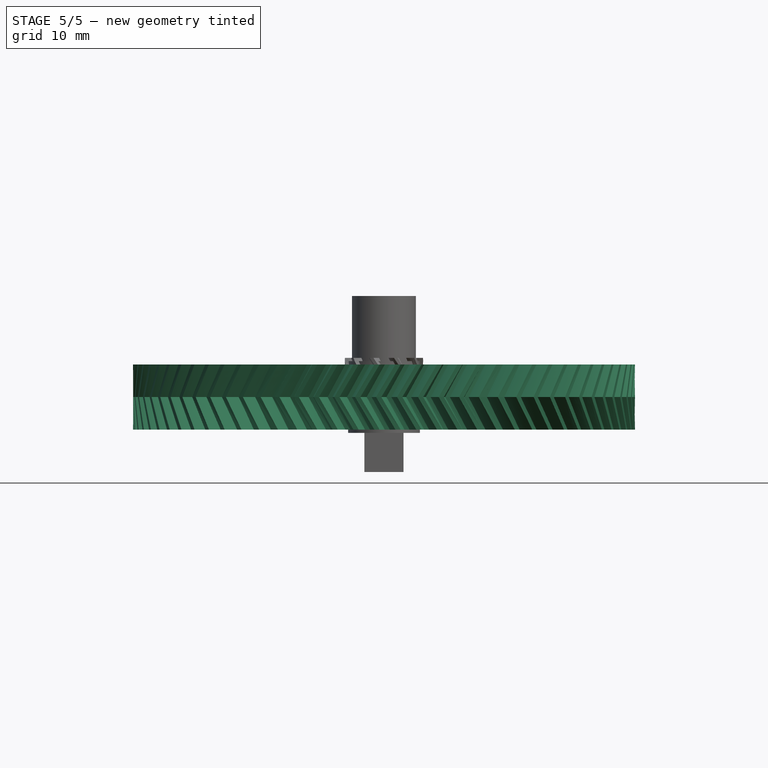
[diagram: stage 5 of 5 — front view after this stage's code; geometry added in this stage tinted green]
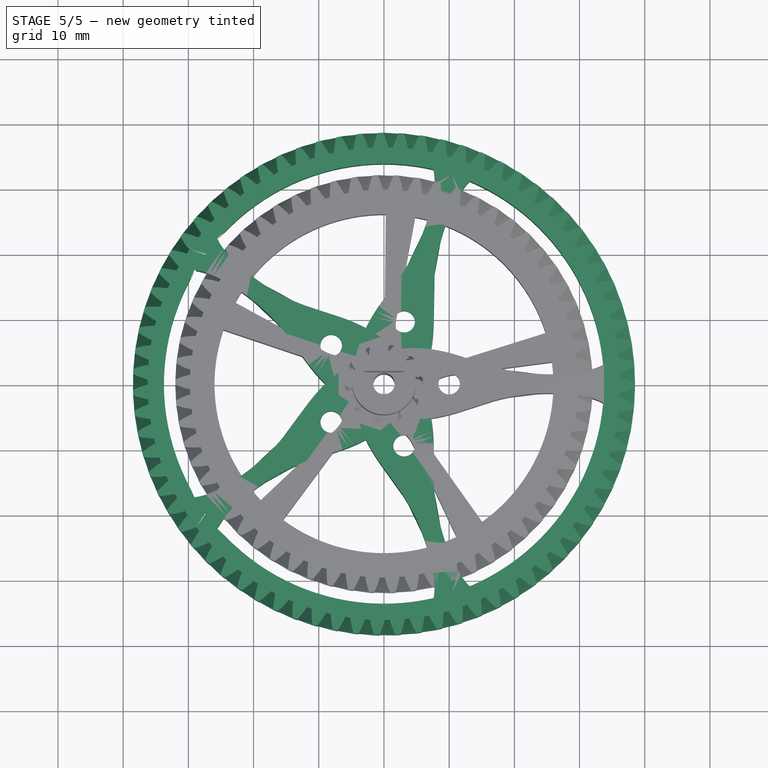
[diagram: stage 5 of 5 — top view after this stage's code; geometry added in this stage tinted green]
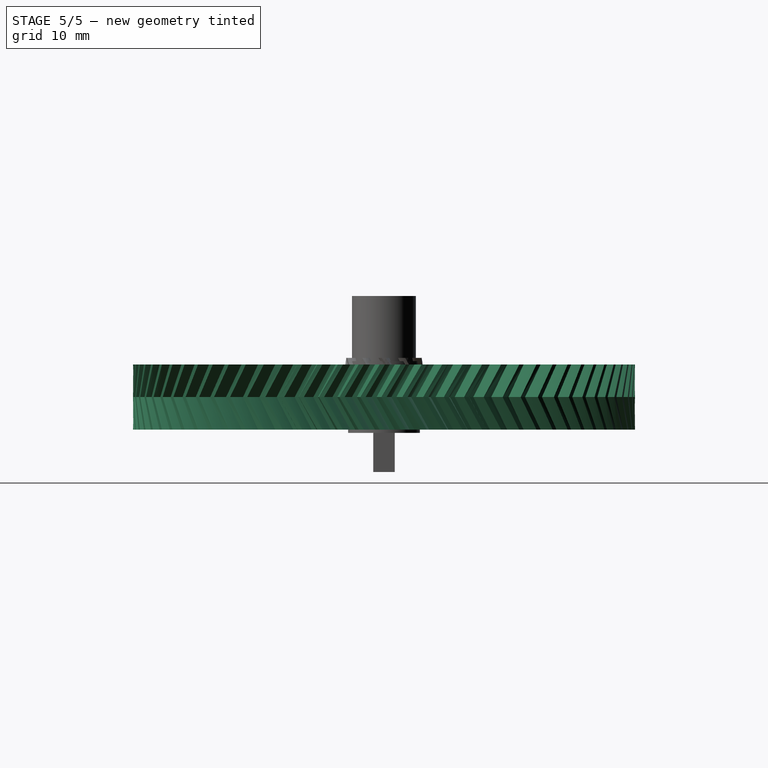
[diagram: stage 5 of 5 — right view after this stage's code; geometry added in this stage tinted green]
FEATURE [PartDesign::FeaturePython] InvoluteGear003  # WARN: FeaturePython — macro-defined, semantics opaque (R4)
  AttacherType = Attacher::AttachEngine3D
  Suppressed = false
  addendum_diameter = 77
  angular_backlash = 0
  axle_hole = false
  axle_holesize = 10
  backlash = 0
  clearance = 0.25
  double_helix = true
  head = 0
  head_fillet = 0
  height = 10
  helix_angle = 30
  module = 1
  num_teeth = 75
  numpoints = 20
  offset_hole = false
  offset_holeoffset = 10
  offset_holesize = 10
  pitch_diameter = 75
  pressure_angle = 20
  properties_from_tool = false
  reversed_backlash = false
  root_diameter = 72.5
  root_fillet = 0
  shift = 0
  simple = false
  transverse_pitch = 3.14159
  traverse_module = 1
  undercut = false
  version = 1.3.0
  expr: angular_backlash = backlash / pitch_diameter * 360 ° / pi
FEATURE [Sketcher::SketchObject] Sketch059
  ArcFitTolerance = 1e-06
  AttachmentSupport = -> [InvoluteGear003]
  FullyConstrained = true
  MakeInternals = false
  MapMode = 5
  Placement = pos=(-4.5567e-05,-3.51401e-06,9.99995) rot=(0.076889,-0.997035,0;5e-06rad)
  sketch-geometry (1):
    g0: Circle CenterX=0 CenterY=0 CenterZ=0 NormalX=0 NormalY=0 NormalZ=1 AngleXU=0 Radius=33.75
  constraints (2):
    c: Coincident(g0,g-1)
    c: Diameter(g0) = 67.5
FEATURE [PartDesign::Pocket] Pocket041
  BaseFeature = -> InvoluteGear003
  Direction = (4.55672e-06,3.51403e-07,-1)
  Length = 5
  Length2 = 5
  Profile = -> Sketch059
  ReferenceAxis = -> Sketch059 [N_Axis]
  Suppressed = false
  Type = 1
FEATURE [PartDesign::Body] Body021  label="spoke"
  AllowCompound = false
  Group = -> [Sketch060,Pad017,Sketch073,Pocket048]
  Origin = -> Origin037
  Tip = -> Pocket048
FEATURE [Part::FeaturePython] Array  # Draft array (typed FeaturePython)
  AlwaysSyncPlacement = false
  Angle = 360
  ArrayType = 1
  Axis = (0,0,1)
  Base = -> Body021
  Center = (0,0,0)
  Count = 5
  ExpandArray = false
  Fuse = false
  IntervalAxis = (0,0,0)
  IntervalX = (50,0,0)
  IntervalY = (0,50,0)
  IntervalZ = (0,0,50)
  NumberCircles = 3
  NumberPolar = 5
  NumberX = 2
  NumberY = 2
  NumberZ = 1
  PlacementList = 5 placements: [(0,0,0),(0,0,0),(0,0,0),(0,0,0),(0,0,0)]
  RadialDistance = 50
  ScaleList = (5) [(1,1,1),(1,1,1),(1,1,1),(1,1,1),(1,1,1)]
  Symmetry = 1
  TangentialDistance = 25
FEATURE [PartDesign::Boolean] Boolean
  BaseFeature = -> Pocket041
  Group = -> [Array]
  Suppressed = false
  Type = 0
  UsePlacement = true
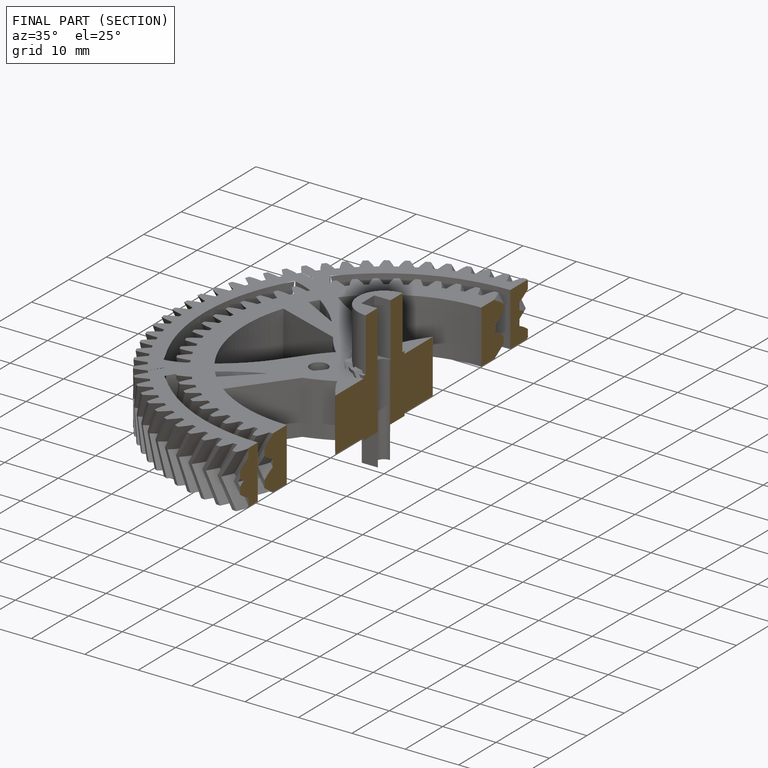
[diagram: finished part — half-section view (interior)]
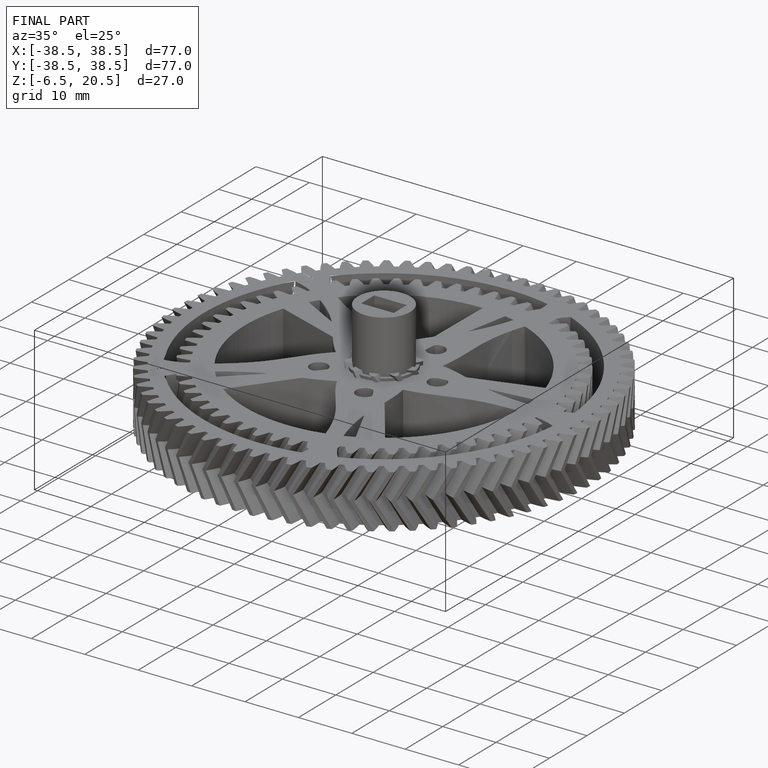
[diagram: finished part — iso view with bounding-box wireframe]
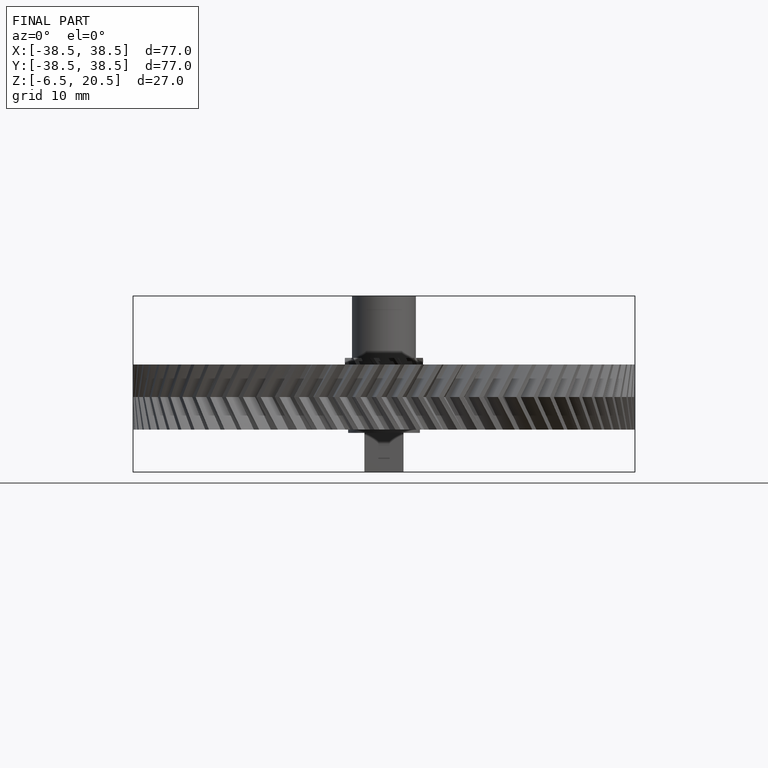
[diagram: finished part — front view with bounding-box wireframe]
